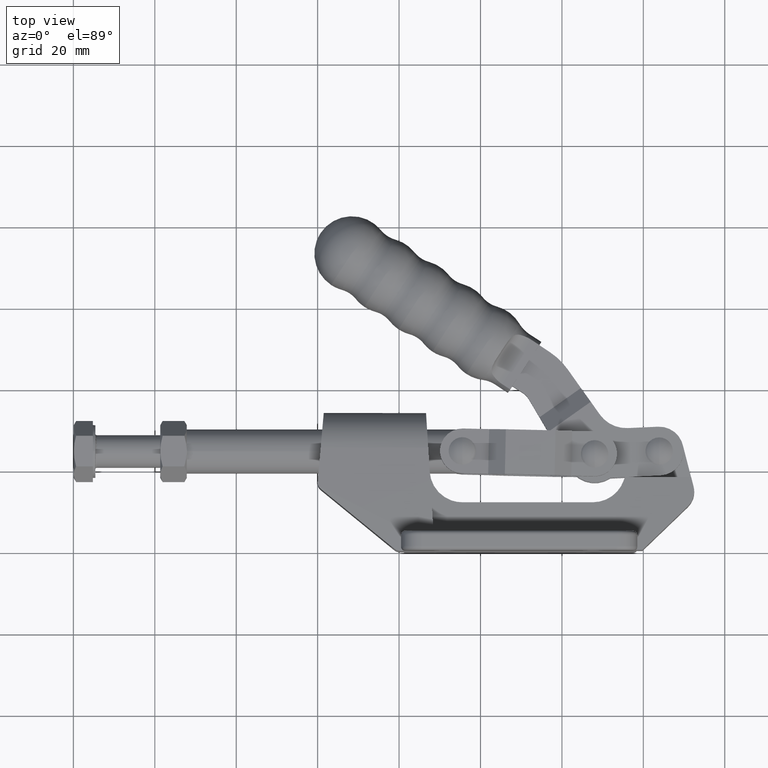
[diagram: clean part render]
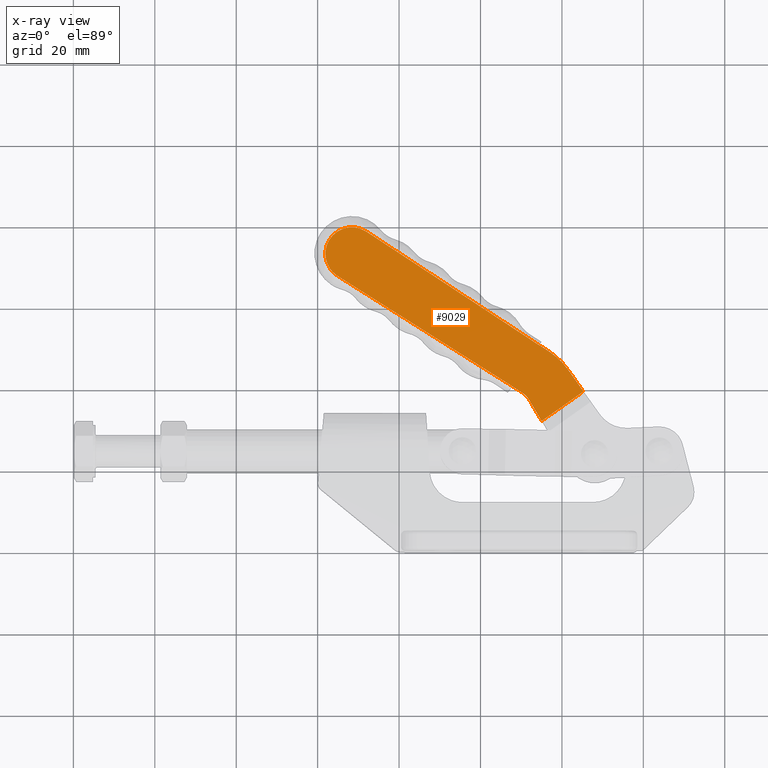
[diagram: x-ray — body ghosted, one internal face saturated and labeled with its STEP entity id]
A machine part, top view, then the same camera in x-ray: the body is ghosted and one INTERNAL B-rep face — a face not visible from any outside direction — is saturated and labeled: STEP entity #9029.
In plain terms, the highlighted planar face has unit normal (0, 0, 1).
Its self-contained STEP definition (entity closure, byte-faithful):
#224 = VECTOR ( 'NONE', #6417, 1000.000000000000100 ) ;
#267 = CARTESIAN_POINT ( 'NONE',  ( 50.27732204031582300, 39.05931439543132900, 5.000000002191122000E-005 ) ) ;
#393 = AXIS2_PLACEMENT_3D ( 'NONE', #2913, #9363, #3819 ) ;
#466 = CARTESIAN_POINT ( 'NONE',  ( 51.91075524288558500, 37.37817262106413100, 5.000000002200554600E-005 ) ) ;
#561 = DIRECTION ( 'NONE',  ( 0.8354771228508047800, -0.5495252288957635000, 3.067474695482219400E-017 ) ) ;
#699 = EDGE_CURVE ( 'NONE', #4953, #5084, #9505, .T. ) ;
#854 = VECTOR ( 'NONE', #1000, 1000.000000000000100 ) ;
#901 = EDGE_CURVE ( 'NONE', #5084, #3160, #5610, .T. ) ;
#1000 = DIRECTION ( 'NONE',  ( 0.5093283438403654100, -0.8605722736416916400, 4.845858421783043900E-017 ) ) ;
#1079 = LINE ( 'NONE', #10644, #10600 ) ;
#1146 = LINE ( 'NONE', #11413, #9088 ) ;
#1391 = ORIENTED_EDGE ( 'NONE', *, *, #11174, .F. ) ;
#1442 = EDGE_CURVE ( 'NONE', #10835, #1848, #10502, .T. ) ;
#1505 = CARTESIAN_POINT ( 'NONE',  ( 15.84410023340575300, 60.80049680575734800, 5.000000002069833700E-005 ) ) ;
#1615 = VERTEX_POINT ( 'NONE', #3055 ) ;
#1625 = ORIENTED_EDGE ( 'NONE', *, *, #4808, .T. ) ;
#1704 = VECTOR ( 'NONE', #10707, 1000.000000000000000 ) ;
#1825 = AXIS2_PLACEMENT_3D ( 'NONE', #4341, #6818, #9576 ) ;
#1848 = VERTEX_POINT ( 'NONE', #5641 ) ;
#2046 = EDGE_CURVE ( 'NONE', #8479, #6427, #10483, .T. ) ;
#2100 = DIRECTION ( 'NONE',  ( 0.8165168084156962900, 0.5773216621387465800, -3.311912181551173400E-017 ) ) ;
#2115 = VERTEX_POINT ( 'NONE', #267 ) ;
#2280 = VECTOR ( 'NONE', #11200, 1000.000000000000000 ) ;
#2913 = CARTESIAN_POINT ( 'NONE',  ( 47.60789387467713900, 34.83153090186231500, 5.000000002215200100E-005 ) ) ;
#2997 = DIRECTION ( 'NONE',  ( 5.269369769264243300E-019, 5.662158734140743400E-017, 1.000000000000000000 ) ) ;
#3055 = CARTESIAN_POINT ( 'NONE',  ( 48.84243036051315600, 54.36718377449687300, 5.000000001931049700E-005 ) ) ;
#3160 = VERTEX_POINT ( 'NONE', #5795 ) ;
#3631 = CARTESIAN_POINT ( 'NONE',  ( 4.921184659820014000, 67.69724034226432300, 5.000000002031358700E-005 ) ) ;
#3645 = CARTESIAN_POINT ( 'NONE',  ( 47.60789387467713900, 34.83153090186231500, 5.000000002215200100E-005 ) ) ;
#3696 = AXIS2_PLACEMENT_3D ( 'NONE', #4880, #11363, #5821 ) ;
#3717 = EDGE_LOOP ( 'NONE', ( #6762, #1391, #8820, #6209, #7054, #6960, #7506, #10406, #9149, #1625, #8971 ) ) ;
#3789 = CARTESIAN_POINT ( 'NONE',  ( -0.2877700679424528000, 86.68199395627490800, 5.000000001750666900E-005 ) ) ;
#3819 = DIRECTION ( 'NONE',  ( -0.8165168084156987400, -0.5773216621387431400, 3.311898823764325400E-017 ) ) ;
#4020 = CARTESIAN_POINT ( 'NONE',  ( 75.64319719571148000, 46.67057020218551600, 5.000000001973216300E-005 ) ) ;
#4341 = CARTESIAN_POINT ( 'NONE',  ( 8.391460430939394800, 73.19334678891310400, 5.000000002000056400E-005 ) ) ;
#4808 = EDGE_CURVE ( 'NONE', #1615, #8089, #1146, .T. ) ;
#4824 = DIRECTION ( 'NONE',  ( -0.8165168084156941800, -0.5773216621387496900, 3.311914394222904900E-017 ) ) ;
#4880 = CARTESIAN_POINT ( 'NONE',  ( 8.391460430939394800, 73.19334678891310400, 5.000000002000056400E-005 ) ) ;
#4928 = CARTESIAN_POINT ( 'NONE',  ( 3.084101176237394000, 69.44075598501127900, 5.000000002021583300E-005 ) ) ;
#4953 = VERTEX_POINT ( 'NONE', #466 ) ;
#5084 = VERTEX_POINT ( 'NONE', #9009 ) ;
#5233 = EDGE_CURVE ( 'NONE', #10616, #10835, #10210, .T. ) ;
#5387 = EDGE_CURVE ( 'NONE', #2115, #4953, #6899, .T. ) ;
#5518 = CARTESIAN_POINT ( 'NONE',  ( 54.22680213500743200, 54.91660809976601600, 5.000000002101126500E-005 ) ) ;
#5610 = LINE ( 'NONE', #4020, #10221 ) ;
#5641 = CARTESIAN_POINT ( 'NONE',  ( 11.96337441876183200, 78.62394808744329600, 5.000000001795647100E-005 ) ) ;
#5795 = CARTESIAN_POINT ( 'NONE',  ( 65.25201629890585800, 39.32344180862764200, 5.000000002123784900E-005 ) ) ;
#5821 = DIRECTION ( 'NONE',  ( -0.8165168084157037300, -0.5773216621387360400, 3.311878462395407300E-017 ) ) ;
#5872 = DIRECTION ( 'NONE',  ( 0.8354771228508047800, -0.5495252288957635000, 3.067474695482219400E-017 ) ) ;
#6209 = ORIENTED_EDGE ( 'NONE', *, *, #699, .F. ) ;
#6417 = DIRECTION ( 'NONE',  ( -0.5773216621387465800, 0.8165168084156962900, -4.592826565207504900E-017 ) ) ;
#6427 = VERTEX_POINT ( 'NONE', #9937 ) ;
#6580 = DIRECTION ( 'NONE',  ( -5.269369769264297200E-019, -5.662158734140744700E-017, -1.000000000000000000 ) ) ;
#6690 = CARTESIAN_POINT ( 'NONE',  ( -25.08722845488548000, 48.97784671809311900, 5.000000001965459600E-005 ) ) ;
#6762 = ORIENTED_EDGE ( 'NONE', *, *, #2046, .T. ) ;
#6818 = DIRECTION ( 'NONE',  ( -5.269369769264297200E-019, -5.662158734140744700E-017, -1.000000000000000000 ) ) ;
#6899 = CIRCLE ( 'NONE', #393, 4.999999999999983100 ) ;
#6903 = LINE ( 'NONE', #1505, #1704 ) ;
#6960 = ORIENTED_EDGE ( 'NONE', *, *, #10465, .F. ) ;
#7054 = ORIENTED_EDGE ( 'NONE', *, *, #5387, .F. ) ;
#7265 = EDGE_CURVE ( 'NONE', #1848, #1615, #1079, .T. ) ;
#7506 = ORIENTED_EDGE ( 'NONE', *, *, #5233, .T. ) ;
#7658 = CARTESIAN_POINT ( 'NONE',  ( 54.40561225958271100, 50.70806645953852200, 5.000000001951474700E-005 ) ) ;
#8089 = VERTEX_POINT ( 'NONE', #7658 ) ;
#8102 = FACE_OUTER_BOUND ( 'NONE', #3717, .T. ) ;
#8479 = VERTEX_POINT ( 'NONE', #10107 ) ;
#8539 = PLANE ( 'NONE',  #11118 ) ;
#8568 = AXIS2_PLACEMENT_3D ( 'NONE', #3645, #6580, #4824 ) ;
#8820 = ORIENTED_EDGE ( 'NONE', *, *, #901, .F. ) ;
#8971 = ORIENTED_EDGE ( 'NONE', *, *, #10718, .T. ) ;
#9009 = CARTESIAN_POINT ( 'NONE',  ( 55.03496801284709500, 32.09943461384092700, 5.000000002208594600E-005 ) ) ;
#9029 = ADVANCED_FACE ( 'NONE', ( #8102 ), #8539, .F. ) ;
#9088 = VECTOR ( 'NONE', #5872, 1000.000000000000000 ) ;
#9149 = ORIENTED_EDGE ( 'NONE', *, *, #7265, .T. ) ;
#9363 = DIRECTION ( 'NONE',  ( -5.269369769264297200E-019, -5.662158734140744700E-017, -1.000000000000000000 ) ) ;
#9448 = DIRECTION ( 'NONE',  ( -0.8165168084156962900, -0.5773216621387465800, 3.311912181551173400E-017 ) ) ;
#9505 = LINE ( 'NONE', #9983, #854 ) ;
#9576 = DIRECTION ( 'NONE',  ( -0.8165168084156962900, -0.5773216621387465800, 3.311878462395406100E-017 ) ) ;
#9937 = CARTESIAN_POINT ( 'NONE',  ( 61.48867961774396200, 44.64599915822099500, 5.000000002158897500E-005 ) ) ;
#9983 = CARTESIAN_POINT ( 'NONE',  ( 48.66440281144123500, 42.86328046310071500, 5.000000002169668400E-005 ) ) ;
#10044 = LINE ( 'NONE', #5518, #224 ) ;
#10107 = CARTESIAN_POINT ( 'NONE',  ( 56.94982276590511800, 49.03464199032598000, 5.000000001960815800E-005 ) ) ;
#10210 = CIRCLE ( 'NONE', #3696, 6.499999999999966200 ) ;
#10221 = VECTOR ( 'NONE', #2100, 1000.000000000000100 ) ;
#10406 = ORIENTED_EDGE ( 'NONE', *, *, #1442, .T. ) ;
#10465 = EDGE_CURVE ( 'NONE', #10616, #2115, #6903, .T. ) ;
#10483 = CIRCLE ( 'NONE', #8568, 16.99999999999999300 ) ;
#10502 = CIRCLE ( 'NONE', #1825, 6.499999999999968000 ) ;
#10600 = VECTOR ( 'NONE', #561, 1000.000000000000000 ) ;
#10616 = VERTEX_POINT ( 'NONE', #3631 ) ;
#10644 = CARTESIAN_POINT ( 'NONE',  ( -0.2877700679424528000, 86.68199395627490800, 5.000000001750666900E-005 ) ) ;
#10707 = DIRECTION ( 'NONE',  ( 0.8455566987138092300, -0.5338856331277368500, 2.978389691582461300E-017 ) ) ;
#10718 = EDGE_CURVE ( 'NONE', #8089, #8479, #11813, .T. ) ;
#10835 = VERTEX_POINT ( 'NONE', #4928 ) ;
#11118 = AXIS2_PLACEMENT_3D ( 'NONE', #6690, #2997, #9448 ) ;
#11174 = EDGE_CURVE ( 'NONE', #3160, #6427, #10044, .T. ) ;
#11200 = DIRECTION ( 'NONE',  ( 0.8354771228508047800, -0.5495252288957635000, 3.067474695482219400E-017 ) ) ;
#11363 = DIRECTION ( 'NONE',  ( -5.269369769264297200E-019, -5.662158734140744700E-017, -1.000000000000000000 ) ) ;
#11413 = CARTESIAN_POINT ( 'NONE',  ( -0.2877700679424528000, 86.68199395627490800, 5.000000001750666900E-005 ) ) ;
#11813 = LINE ( 'NONE', #3789, #2280 ) ;